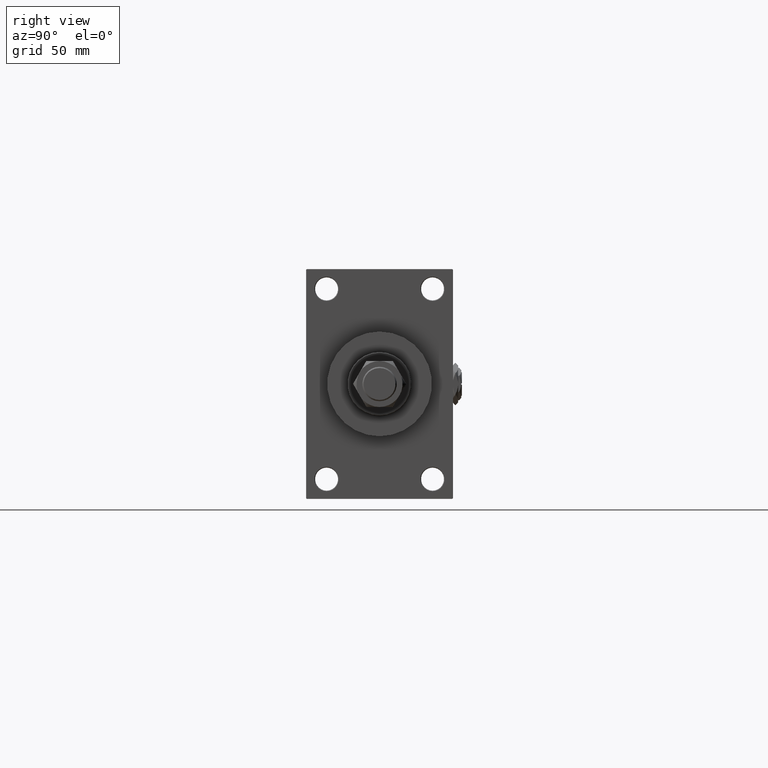
[diagram: clean part render]
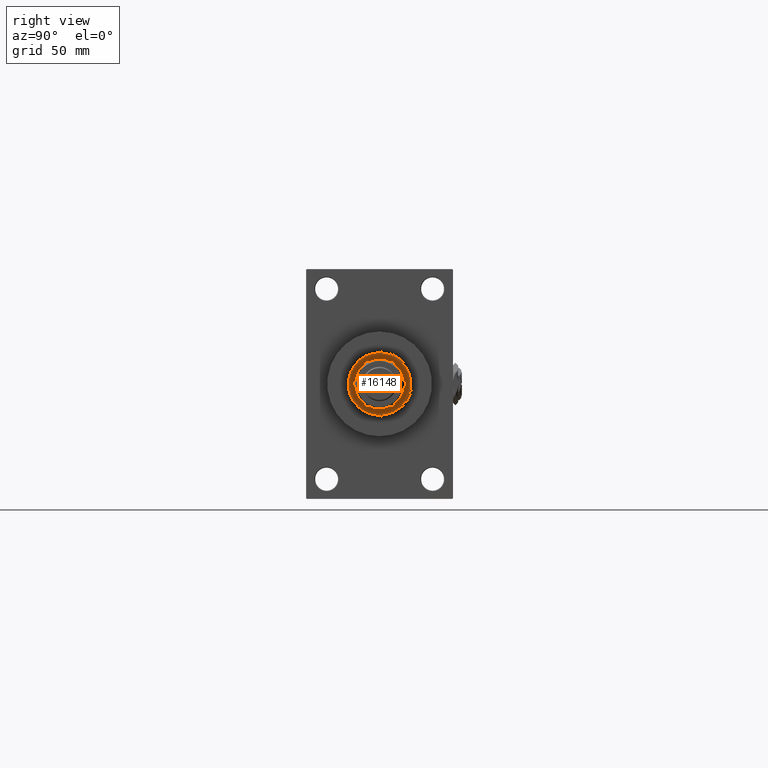
[diagram: same view with one face highlighted and labeled with its STEP entity id]
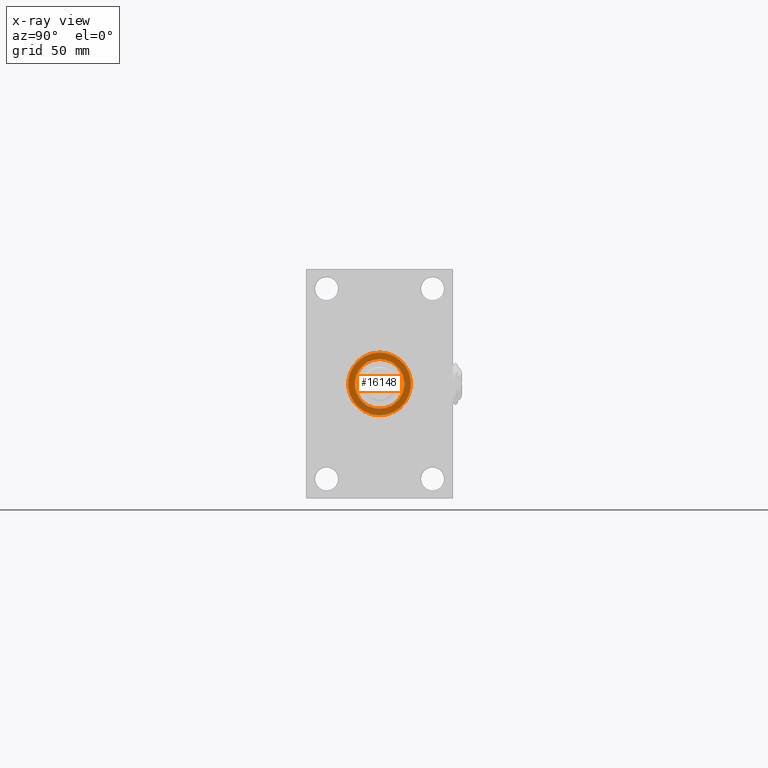
[diagram: x-ray of the same camera — body ghosted, the highlighted face saturated]
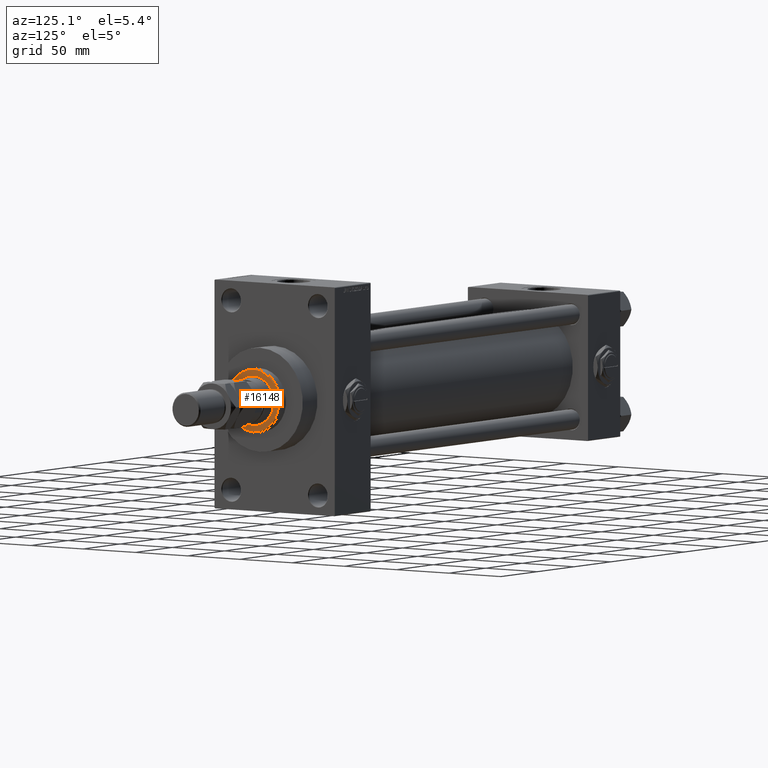
[diagram: same view with one face highlighted and labeled with its STEP entity id]
A machine part, right view. The second image highlights one B-rep face of the part: STEP entity #16148.
The next image is the same camera in x-ray: the body ghosted, the highlighted face saturated — about 0% of this face is hidden behind the body in this view.
A second angle (auxiliary view) of the same face is appended — the face is thin or edge-on in the first view.
In plain terms, the highlighted planar face has unit normal (1, -0, -0).
Its self-contained STEP definition (entity closure, byte-faithful):
#864 = ORIENTED_EDGE ( 'NONE', *, *, #19017, .F. ) ;
#1381 = AXIS2_PLACEMENT_3D ( 'NONE', #22680, #26842, #38561 ) ;
#2353 = CARTESIAN_POINT ( 'NONE',  ( 0.000000000000000000, 0.000000000000000000, 52.25999999999999801 ) ) ;
#2592 = CARTESIAN_POINT ( 'NONE',  ( 19.50000000000000000, 0.000000000000000000, 52.25999999999999801 ) ) ;
#2873 = DIRECTION ( 'NONE',  ( 1.000000000000000000, 0.000000000000000000, -0.000000000000000000 ) ) ;
#3130 = FACE_OUTER_BOUND ( 'NONE', #15899, .T. ) ;
#3722 = AXIS2_PLACEMENT_3D ( 'NONE', #2353, #30977, #2873 ) ;
#6344 = CIRCLE ( 'NONE', #31266, 19.50000000000000000 ) ;
#7126 = VERTEX_POINT ( 'NONE', #44120 ) ;
#7761 = DIRECTION ( 'NONE',  ( 0.000000000000000000, 0.000000000000000000, 1.000000000000000000 ) ) ;
#12463 = AXIS2_PLACEMENT_3D ( 'NONE', #43633, #7761, #15550 ) ;
#15550 = DIRECTION ( 'NONE',  ( 1.000000000000000000, 0.000000000000000000, 0.000000000000000000 ) ) ;
#15803 = CIRCLE ( 'NONE', #12463, 19.50000000000000000 ) ;
#15899 = EDGE_LOOP ( 'NONE', ( #30497, #32709 ) ) ;
#16148 = ADVANCED_FACE ( 'NONE', ( #38522, #3130 ), #18991, .T. ) ;
#18245 = VERTEX_POINT ( 'NONE', #2592 ) ;
#18991 = PLANE ( 'NONE',  #3722 ) ;
#19017 = EDGE_CURVE ( 'NONE', #7126, #18245, #6344, .T. ) ;
#20021 = CARTESIAN_POINT ( 'NONE',  ( 0.000000000000000000, 0.000000000000000000, 52.25999999999999801 ) ) ;
#21423 = CARTESIAN_POINT ( 'NONE',  ( 24.49999999999998224, 3.031000827889698072E-15, 52.25999999999999801 ) ) ;
#22680 = CARTESIAN_POINT ( 'NONE',  ( 0.000000000000000000, 0.000000000000000000, 52.25999999999999801 ) ) ;
#23412 = EDGE_CURVE ( 'NONE', #38790, #39356, #38804, .T. ) ;
#25229 = DIRECTION ( 'NONE',  ( 0.000000000000000000, 0.000000000000000000, 1.000000000000000000 ) ) ;
#25698 = CIRCLE ( 'NONE', #32368, 24.49999999999998224 ) ;
#26842 = DIRECTION ( 'NONE',  ( 0.000000000000000000, 0.000000000000000000, 1.000000000000000000 ) ) ;
#27883 = EDGE_LOOP ( 'NONE', ( #47123, #864 ) ) ;
#29967 = EDGE_CURVE ( 'NONE', #39356, #38790, #25698, .T. ) ;
#30497 = ORIENTED_EDGE ( 'NONE', *, *, #29967, .T. ) ;
#30977 = DIRECTION ( 'NONE',  ( 0.000000000000000000, 0.000000000000000000, 1.000000000000000000 ) ) ;
#31000 = EDGE_CURVE ( 'NONE', #18245, #7126, #15803, .T. ) ;
#31266 = AXIS2_PLACEMENT_3D ( 'NONE', #49664, #25229, #41880 ) ;
#32368 = AXIS2_PLACEMENT_3D ( 'NONE', #20021, #44447, #40064 ) ;
#32709 = ORIENTED_EDGE ( 'NONE', *, *, #23412, .T. ) ;
#38522 = FACE_BOUND ( 'NONE', #27883, .T. ) ;
#38561 = DIRECTION ( 'NONE',  ( 1.000000000000000000, 0.000000000000000000, 0.000000000000000000 ) ) ;
#38790 = VERTEX_POINT ( 'NONE', #21423 ) ;
#38804 = CIRCLE ( 'NONE', #1381, 24.49999999999998224 ) ;
#39356 = VERTEX_POINT ( 'NONE', #44103 ) ;
#40064 = DIRECTION ( 'NONE',  ( 1.000000000000000000, 0.000000000000000000, 0.000000000000000000 ) ) ;
#41880 = DIRECTION ( 'NONE',  ( 1.000000000000000000, 0.000000000000000000, 0.000000000000000000 ) ) ;
#43633 = CARTESIAN_POINT ( 'NONE',  ( 0.000000000000000000, 0.000000000000000000, 52.25999999999999801 ) ) ;
#44103 = CARTESIAN_POINT ( 'NONE',  ( -24.49999999999998224, 0.000000000000000000, 52.25999999999999801 ) ) ;
#44120 = CARTESIAN_POINT ( 'NONE',  ( -19.50000000000000000, 2.388061258337338939E-15, 52.25999999999999801 ) ) ;
#44447 = DIRECTION ( 'NONE',  ( 0.000000000000000000, 0.000000000000000000, 1.000000000000000000 ) ) ;
#47123 = ORIENTED_EDGE ( 'NONE', *, *, #31000, .F. ) ;
#49664 = CARTESIAN_POINT ( 'NONE',  ( 0.000000000000000000, 0.000000000000000000, 52.25999999999999801 ) ) ;